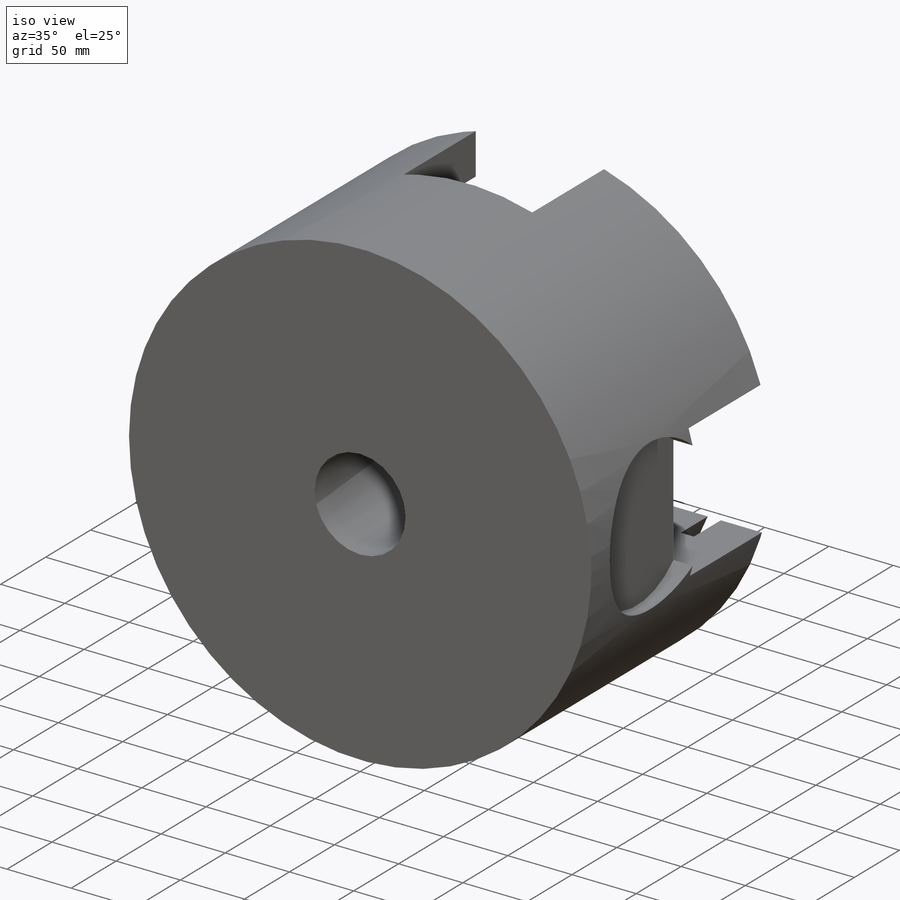
[diagram: iso view]
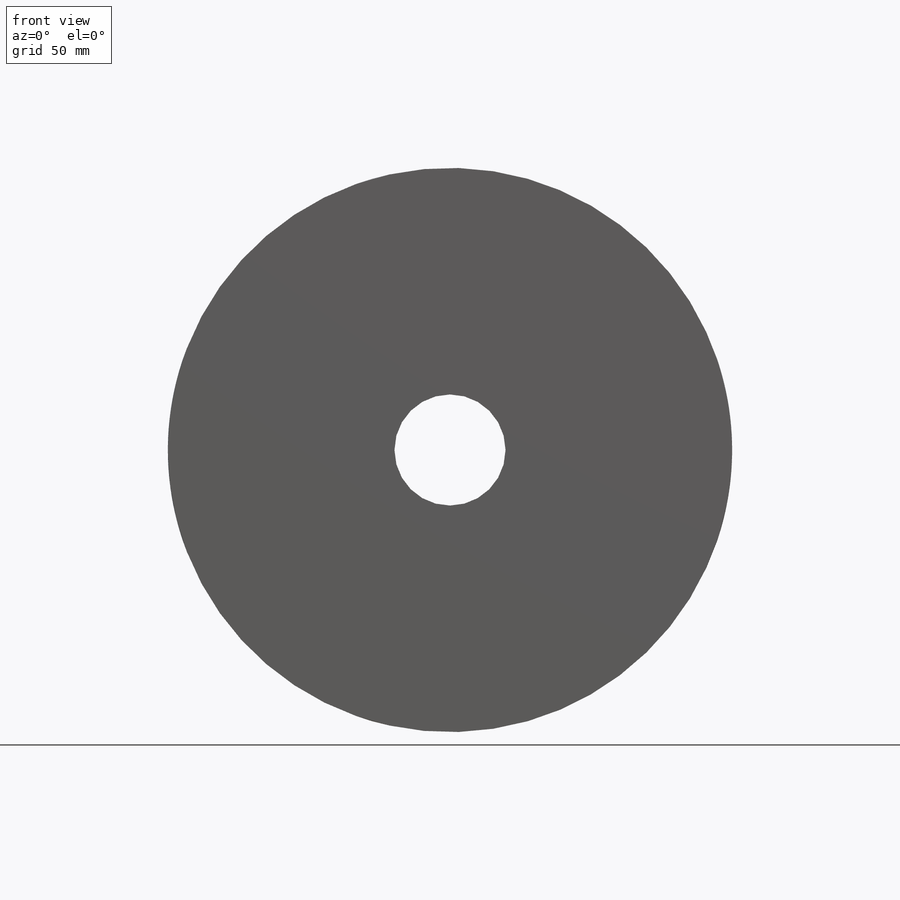
[diagram: front view]
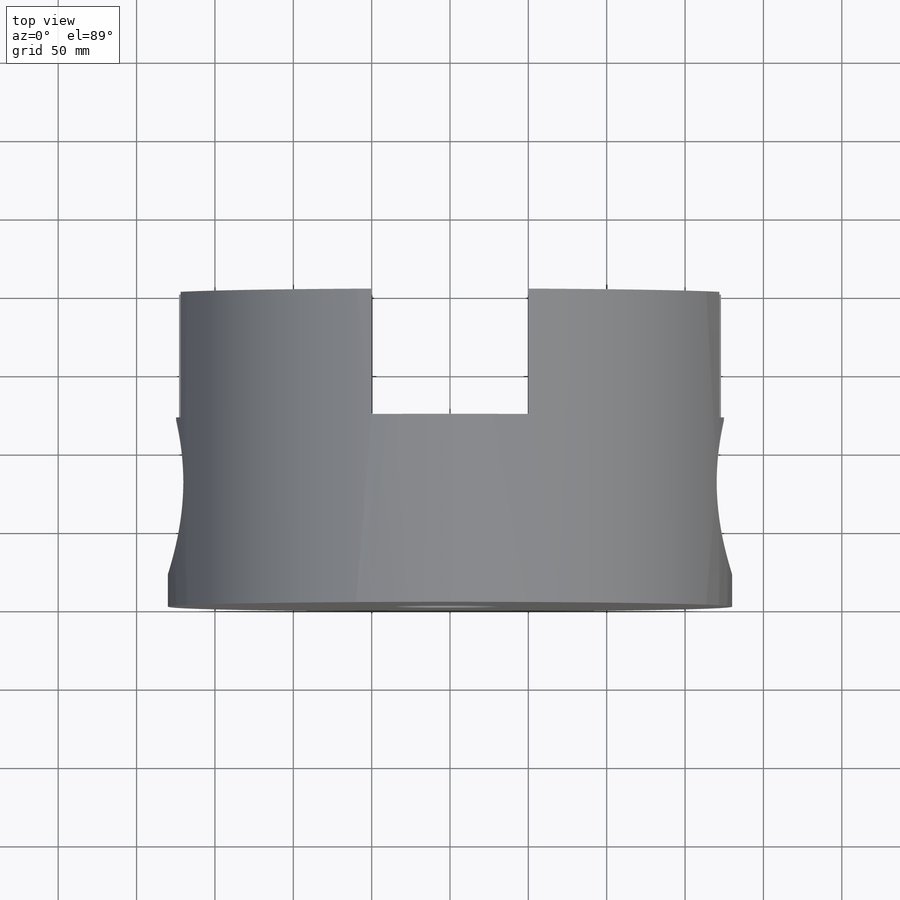
[diagram: top view]
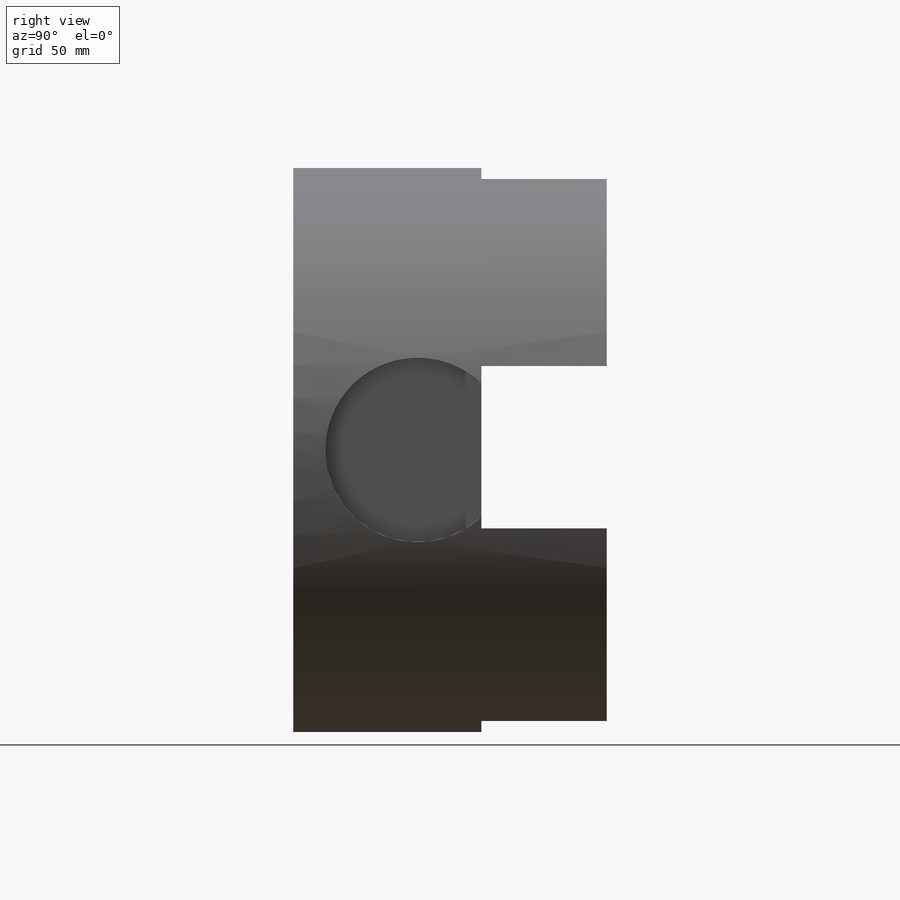
[diagram: right view]
SOLIDWORKS PART (.sldprt)
format: sldprt  version: not decoded by parser v0  size: 227,328 bytes
history: native  units: mm
features: sketch x6, cut_extrude x5, material x1, extrude x1 (+11 scaffold rows collapsed)
feature tree (24):
  scaffold x11  (default folders/planes/origin — collapsed)
  material  "Material <not specified>"
  sketch  "Sketch1"  dims[D1=360.0mm]
  extrude  "Boss-Extrude1"  Depth=200mm
  sketch  "Sketch2"  dims[c1.D5=360.0mm c1.D1=45.0mm c1.D2=45.0mm c1.D3=~54.779868mm c1.D4=50.0mm c2.D5=~104.779868mm c2.D3=90.0mm c2.D1=90.0mm c2.D2=45.0mm c2.D4=~54.779868mm c3.D1=50.0mm c3.D2=50.0mm c3.D3=~53.613723mm c3.D4=50.0mm]
  cut_extrude  "Cut-Extrude1"  Depth=80mm
  sketch  "Sketch6"
  cut_extrude  "Cut-Extrude4"  [1 undecoded]
  sketch  "Sketch7"
  cut_extrude  "Cut-Extrude6"  Depth=30mm
  sketch  "Sketch8"
  cut_extrude  "Cut-Extrude7"  Depth=30mm
  sketch  "Sketch9"
  cut_extrude  "Cut-Extrude8"  Depth=236mm
decode coverage: 7 of 12 modeling features carry decoded parameters
note: ~ marks probable driven/reference dimensions
note: 1 parameter value undecoded
note: suppression state not decoded; provenance and decode notes live in map.json
